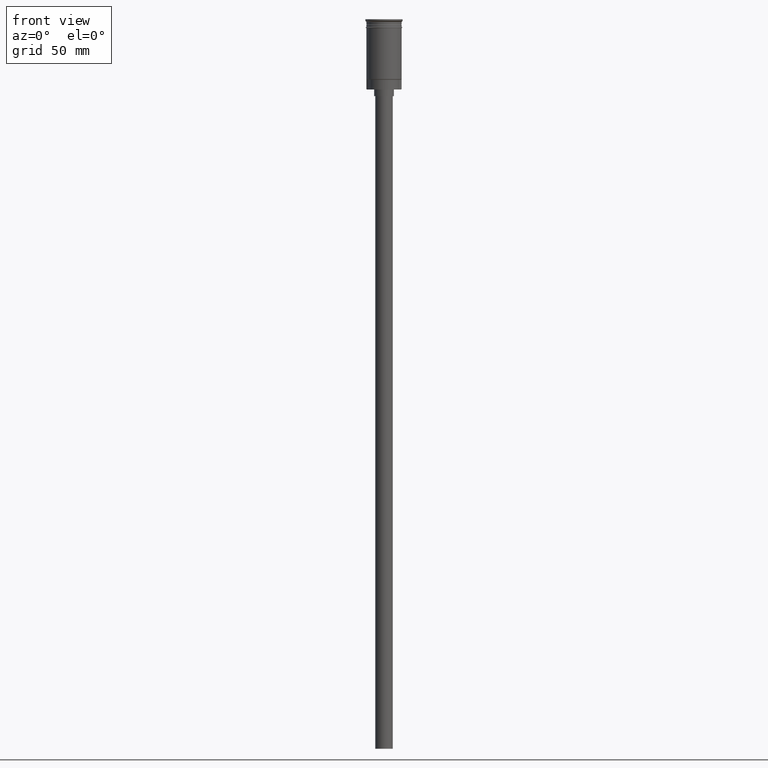
[diagram: clean part render]
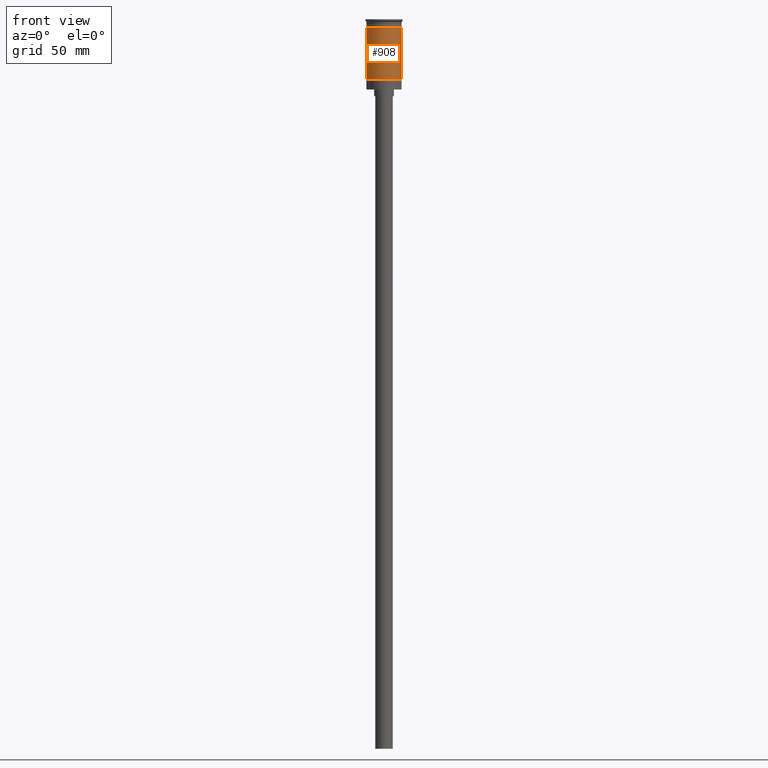
[diagram: same view with one face highlighted and labeled with its STEP entity id]
A machine part, front view. The second image highlights one B-rep face of the part: STEP entity #908.
In plain terms, the highlighted cylindrical surface (edge-blend (fillet) strip) has radius 8 mm, axis along (-0, -0, 1).
Its self-contained STEP definition (entity closure, byte-faithful):
#108 = LINE ( 'NONE', #853, #930 ) ;
#134 = EDGE_CURVE ( 'NONE', #1187, #1257, #1576, .T. ) ;
#139 = ORIENTED_EDGE ( 'NONE', *, *, #611, .F. ) ;
#157 = DIRECTION ( 'NONE',  ( -0.000000000000000000, -0.000000000000000000, 1.000000000000000000 ) ) ;
#203 = CYLINDRICAL_SURFACE ( 'NONE', #1031, 7.999999999999996447 ) ;
#250 = DIRECTION ( 'NONE',  ( 1.000000000000000000, 0.000000000000000000, 0.000000000000000000 ) ) ;
#276 = DIRECTION ( 'NONE',  ( 1.000000000000000000, 0.000000000000000000, 0.000000000000000000 ) ) ;
#295 = EDGE_CURVE ( 'NONE', #1196, #467, #655, .T. ) ;
#321 = CARTESIAN_POINT ( 'NONE',  ( 7.999999999999996447, 0.000000000000000000, 0.000000000000000000 ) ) ;
#391 = DIRECTION ( 'NONE',  ( -0.000000000000000000, -0.000000000000000000, 1.000000000000000000 ) ) ;
#467 = VERTEX_POINT ( 'NONE', #721 ) ;
#495 = EDGE_LOOP ( 'NONE', ( #139, #569, #1459, #918 ) ) ;
#519 = CARTESIAN_POINT ( 'NONE',  ( 0.000000000000000000, 0.000000000000000000, 0.000000000000000000 ) ) ;
#524 = CARTESIAN_POINT ( 'NONE',  ( 0.000000000000000000, 0.000000000000000000, -27.30000000000006466 ) ) ;
#569 = ORIENTED_EDGE ( 'NONE', *, *, #295, .T. ) ;
#601 = AXIS2_PLACEMENT_3D ( 'NONE', #524, #1036, #896 ) ;
#611 = EDGE_CURVE ( 'NONE', #1196, #1187, #108, .T. ) ;
#655 = CIRCLE ( 'NONE', #601, 7.999999999999996447 ) ;
#721 = CARTESIAN_POINT ( 'NONE',  ( 7.999999999999996447, 9.797174393178821713E-16, -27.30000000000006466 ) ) ;
#734 = DIRECTION ( 'NONE',  ( -0.000000000000000000, -0.000000000000000000, 1.000000000000000000 ) ) ;
#824 = FACE_OUTER_BOUND ( 'NONE', #495, .T. ) ;
#853 = CARTESIAN_POINT ( 'NONE',  ( -7.999999999999996447, 9.797174393178821713E-16, 0.000000000000000000 ) ) ;
#870 = DIRECTION ( 'NONE',  ( -0.000000000000000000, -0.000000000000000000, 1.000000000000000000 ) ) ;
#887 = CARTESIAN_POINT ( 'NONE',  ( -8.000000000000000000, 9.797174393178825657E-16, -3.999999999999997335 ) ) ;
#896 = DIRECTION ( 'NONE',  ( -1.000000000000000000, 0.000000000000000000, 0.000000000000000000 ) ) ;
#899 = CARTESIAN_POINT ( 'NONE',  ( 0.000000000000000000, 0.000000000000000000, -3.999999999999997335 ) ) ;
#908 = ADVANCED_FACE ( 'NONE', ( #824 ), #203, .T. ) ;
#918 = ORIENTED_EDGE ( 'NONE', *, *, #134, .F. ) ;
#930 = VECTOR ( 'NONE', #734, 1000.000000000000000 ) ;
#941 = LINE ( 'NONE', #321, #1384 ) ;
#1031 = AXIS2_PLACEMENT_3D ( 'NONE', #519, #870, #250 ) ;
#1036 = DIRECTION ( 'NONE',  ( -0.000000000000000000, -0.000000000000000000, 1.000000000000000000 ) ) ;
#1187 = VERTEX_POINT ( 'NONE', #887 ) ;
#1196 = VERTEX_POINT ( 'NONE', #1487 ) ;
#1257 = VERTEX_POINT ( 'NONE', #1300 ) ;
#1281 = AXIS2_PLACEMENT_3D ( 'NONE', #899, #391, #276 ) ;
#1300 = CARTESIAN_POINT ( 'NONE',  ( 8.000000000000000000, 0.000000000000000000, -3.999999999999997335 ) ) ;
#1384 = VECTOR ( 'NONE', #157, 1000.000000000000000 ) ;
#1392 = EDGE_CURVE ( 'NONE', #467, #1257, #941, .T. ) ;
#1459 = ORIENTED_EDGE ( 'NONE', *, *, #1392, .T. ) ;
#1487 = CARTESIAN_POINT ( 'NONE',  ( -7.999999999999992895, 0.000000000000000000, -27.30000000000006466 ) ) ;
#1576 = CIRCLE ( 'NONE', #1281, 8.000000000000000000 ) ;